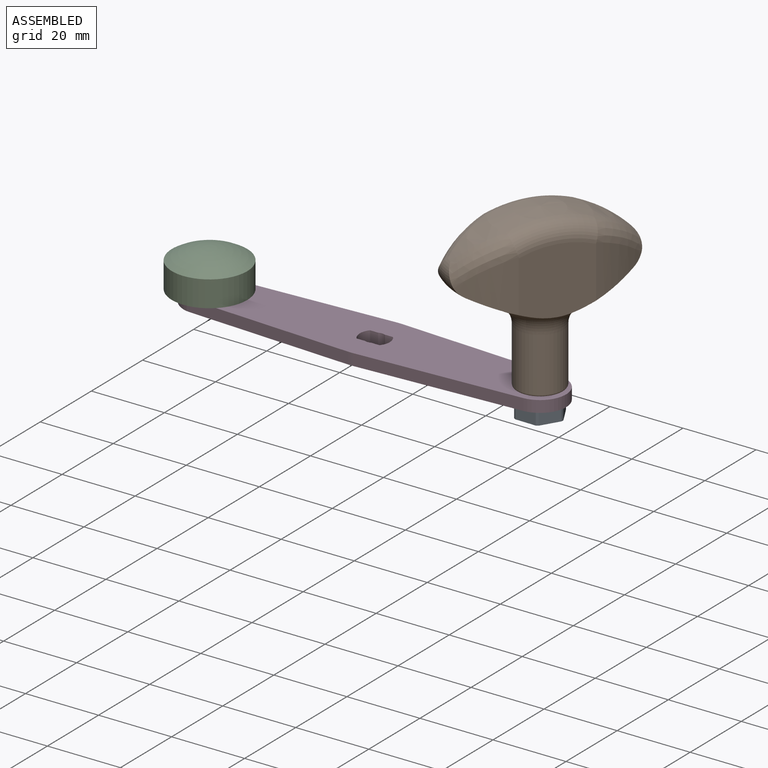
[diagram: assembled view]
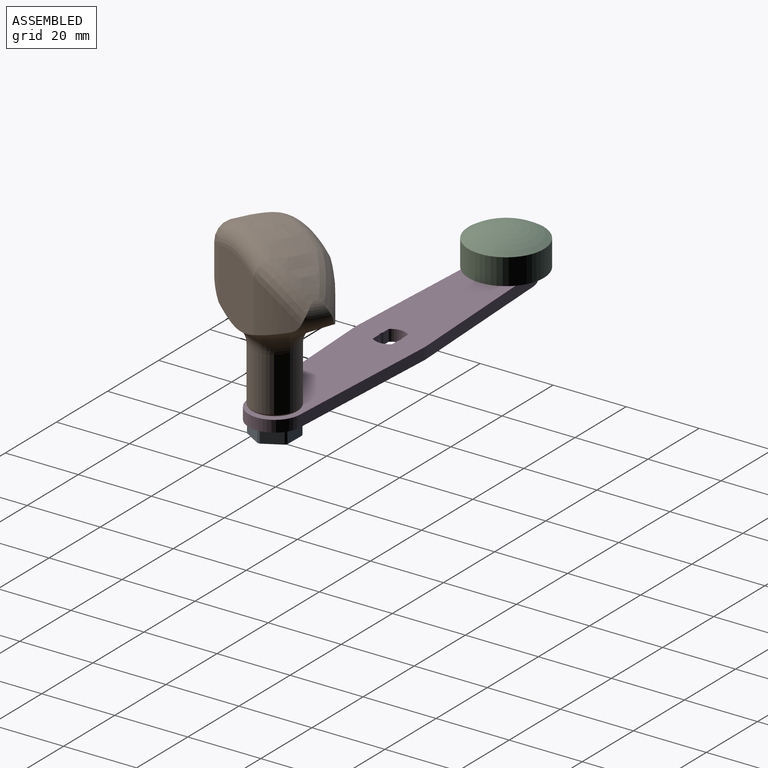
[diagram: assembled view, second angle]
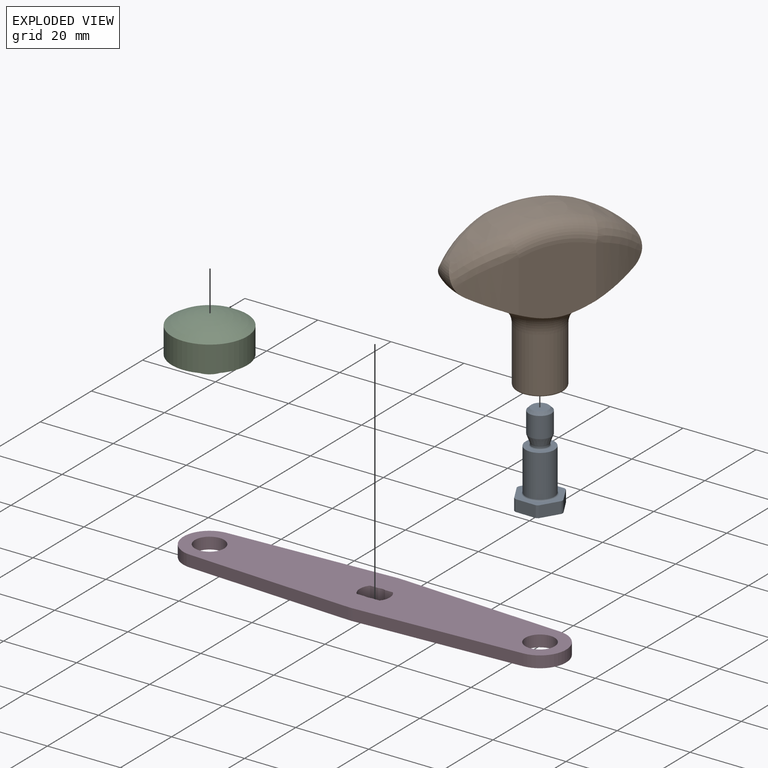
[diagram: exploded view]
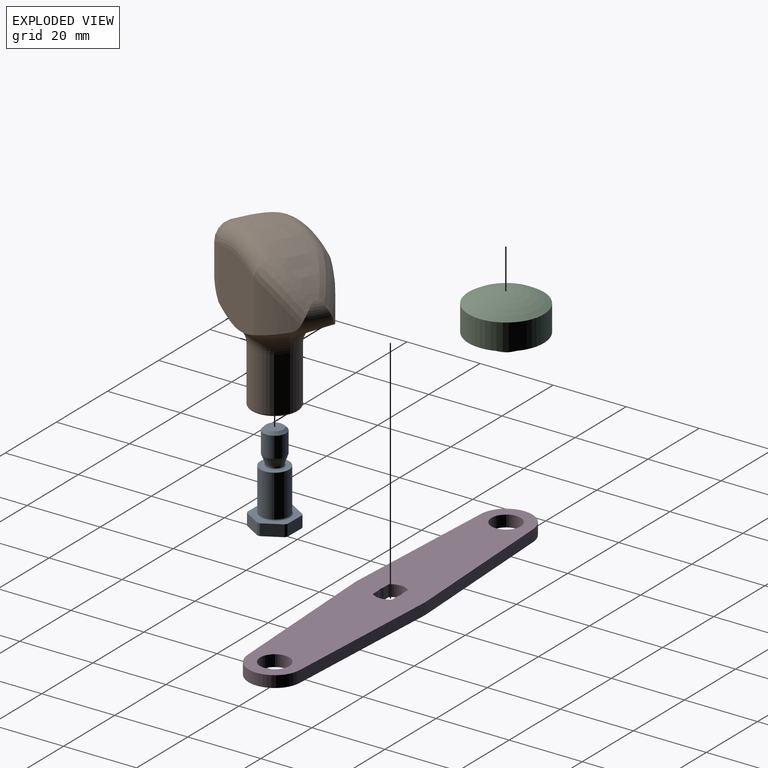
[diagram: exploded view, second angle]
ASSEMBLY  parts=4 mates=3
PART A: 23 faces, bbox 24.6x11.1x12.4 mm
  f0: plane 12.45x11.1mm, normal (1,0,0), area 106.3mm2, adj f1,f2,f3,f4,f5,f12,f14,f15
  f1: cylinder r=6.22mm len=3.18mm, axis (-1,0,0), area 2.1mm2, adj f0,f13,f14,f19
  f2: cylinder r=6.22mm len=3.18mm, axis (-1,0,0), area 2.1mm2, adj f0,f13,f18,f19
  f3: cylinder r=6.22mm len=3.18mm, axis (-1,0,0), area 2.1mm2, adj f0,f13,f17,f18
  f4: cylinder r=6.22mm len=3.18mm, axis (-1,0,0), area 2.1mm2, adj f0,f13,f16,f17
  f5: cylinder r=6.22mm len=3.18mm, axis (-1,0,0), area 2.1mm2, adj f0,f13,f15,f16
  f6: cylinder r=3.94mm len=11.53mm, axis (-1,0,0), area 285.1mm2, adj f7,f21
  f7: plane 7.87x7.87mm, normal (-1,0,0), area 26.3mm2, adj f6,f22
  f8: cylinder r=2.29mm len=4.57mm, axis (-1,0,0), area 5.5mm2, adj f9,f22
  f9: cone r=3.11mm half-angle=20deg, axis (-1,0,0), area 40.9mm2, adj f8,f10
  f10: cylinder r=3.11mm len=6.22mm, axis (-1,0,0), area 112.1mm2, adj f9,f20
  f11: plane 4.7x4.7mm, normal (-1,0,0), area 17.3mm2, adj f20
  f12: cylinder r=6.22mm len=3.18mm, axis (-1,0,0), area 2.1mm2, adj f0,f13,f14,f15
  f13: plane 12.45x11.1mm, normal (-1,0,0), area 47.8mm2, adj f1,f2,f3,f4,f5,f12,f14,f15
  f14: plane 4.88x3.18mm, normal (0,-0.5,0.87), area 17.9mm2, adj f0,f1,f12,f13
  f15: plane 4.88x3.18mm, normal (0,0.5,0.87), area 17.9mm2, adj f0,f5,f12,f13
  f16: plane 5.63x3.18mm, normal (0,1,0), area 17.9mm2, adj f0,f4,f5,f13
  f17: plane 4.88x3.18mm, normal (0,0.5,-0.87), area 17.9mm2, adj f0,f3,f4,f13
  f18: plane 4.88x3.18mm, normal (0,-0.5,-0.87), area 17.9mm2, adj f0,f2,f3,f13
  f19: plane 5.63x3.18mm, normal (0,-1,0), area 17.9mm2, adj f0,f1,f2,f13
  f20: cone r=2.35mm half-angle=45deg, axis (1,0,0), area 18.5mm2, adj f10,f11
  f21: torus R=4.32mm, axis (-1,0,0), area 15.3mm2, adj f6,f13
  f22: torus R=2.67mm, axis (-1,0,0), area 9.1mm2, adj f7,f8
PART B: 25 faces, bbox 49.2x47.3x54.1 mm
  f0: cone r=6.35mm half-angle=60deg, axis (-1,0,0), area 281.8mm2, adj f2,f8,f9,f10,f11,f13
  f1: torus R=19.05mm, axis (1,0,0), area 57.8mm2, adj f3,f6,f7,f12,f22,f23
  f2: torus R=19.05mm, axis (1,0,0), area 57.8mm2, adj f0,f3,f9,f10,f21,f24
  f3: sphere r=31.91mm, area 416.4mm2, adj f1,f2,f14,f15,f21,f22,f23,f24
  f4: plane 11.68x11.68mm, normal (1,0,0), area 57.7mm2, adj f16,f20
  f5: cylinder r=6.35mm len=14.88mm, axis (1,0,0), area 593.5mm2, adj f13,f20
  f6: cone r=6.35mm half-angle=60deg, axis (-1,0,0), area 281.8mm2, adj f1,f7,f8,f11,f12,f13
  f7: cylinder r=38.1mm len=14.39mm, axis (1,0,0), area 124.5mm2, adj f1,f6,f8,f15,f22
  f8: plane 21.62x20.68mm, normal (0,-1,0), area 318.5mm2, adj f0,f6,f7,f9,f15
  f9: cylinder r=38.1mm len=14.39mm, axis (1,0,0), area 124.5mm2, adj f0,f2,f8,f15,f21
  f10: cylinder r=38.1mm len=14.39mm, axis (1,0,0), area 124.5mm2, adj f0,f2,f11,f14,f24
  f11: plane 21.62x20.68mm, normal (0,1,0), area 318.5mm2, adj f0,f6,f10,f12,f14
  f12: cylinder r=38.1mm len=14.39mm, axis (1,0,0), area 124.5mm2, adj f1,f6,f11,f14,f23
  f13: torus R=12.7mm, axis (1,0,0), area 311.2mm2, adj f0,f5,f6
  f14: torus R=26.46mm, axis (0,-1,0), area 150.1mm2, adj f3,f10,f11,f12,f23,f24
  f15: torus R=26.46mm, axis (0,-1,0), area 150.1mm2, adj f3,f7,f8,f9,f21,f22
  f16: cylinder r=3.97mm len=7.94mm, axis (1,0,0), area 197.9mm2, adj f4,f17
  f17: plane 7.94x7.94mm, normal (1,0,0), area 29mm2, adj f16,f19
  f18: cone r=0mm half-angle=59deg, axis (1,0,0), area 23.9mm2, adj f19
  f19: cylinder r=2.55mm len=13.34mm, axis (1,0,0), area 213.9mm2, adj f17,f18
  f20: torus R=5.84mm, axis (1,0,0), area 30.9mm2, adj f4,f5
  f21: bspline ~16.84x13.08mm, area 101.7mm2, adj f2,f3,f9,f15
  f22: bspline ~16.84x13.08mm, area 101.7mm2, adj f1,f3,f7,f15
  f23: bspline ~16.84x13.08mm, area 101.7mm2, adj f1,f3,f12,f14
  f24: bspline ~16.84x13.08mm, area 101.7mm2, adj f2,f3,f10,f14
PART C: 5 faces, bbox 13.3x20.6x20.6 mm
  f0: sphere r=19.05mm, area 363.5mm2, adj f1
  f1: cylinder r=10.32mm len=20.64mm, axis (-1,0,0), area 462.8mm2, adj f0,f2
  f2: plane 20.64x20.64mm, normal (-1,0,0), area 285mm2, adj f1,f3
  f3: cylinder r=3.97mm len=7.94mm, axis (-1,0,0), area 79.2mm2, adj f2,f4
  f4: plane 7.94x7.94mm, normal (-1,0,0), area 49.5mm2, adj f3
PART D: 20 faces, bbox 104.8x19x3.2 mm
  f0: plane 44.96x3.18mm, normal (0.05,-1,0), area 142.9mm2, adj f1,f17,f18,f19
  f1: cylinder r=7.14mm len=14.26mm, axis (0,0,1), area 68.8mm2, adj f0,f2,f18,f19
  f2: plane 44.96x3.18mm, normal (0.05,1,0), area 142.9mm2, adj f1,f3,f18,f19
  f3: cylinder r=12.7mm len=3.18mm, axis (0,0,1), area 4.2mm2, adj f2,f4,f18,f19
  f4: plane 44.96x3.18mm, normal (-0.05,1,0), area 142.9mm2, adj f3,f5,f18,f19
  f5: cylinder r=7.14mm len=14.26mm, axis (0,0,1), area 68.8mm2, adj f4,f6,f18,f19
  f6: plane 44.96x3.18mm, normal (-0.05,-1,0), area 142.9mm2, adj f5,f17,f18,f19
  f7: cylinder r=4.1mm len=5.28mm, axis (0,0,1), area 18.2mm2, adj f8,f14,f18,f19
  f8: plane 3.18x2.19mm, normal (0,1,0), area 7mm2, adj f7,f9,f18,f19
  f9: cylinder r=2.81mm len=3.18mm, axis (0,0,1), area 6.1mm2, adj f8,f10,f18,f19
  f10: plane 3.18x2.19mm, normal (0,1,0), area 7mm2, adj f9,f11,f18,f19
  f11: cylinder r=4.1mm len=5.28mm, axis (0,0,1), area 18.2mm2, adj f10,f12,f18,f19
  f12: plane 3.18x2.19mm, normal (0,-1,0), area 7mm2, adj f11,f13,f18,f19
  f13: cylinder r=2.81mm len=3.18mm, axis (0,0,1), area 6.1mm2, adj f12,f14,f18,f19
  f14: plane 3.18x2.19mm, normal (0,-1,0), area 7mm2, adj f7,f13,f18,f19
  f15: cylinder r=4mm len=8mm, axis (0,0,1), area 79.8mm2, adj f18,f19
  f16: cylinder r=4mm len=8mm, axis (0,0,1), area 79.8mm2, adj f18,f19
  f17: cylinder r=12.7mm len=3.18mm, axis (0,0,1), area 4.2mm2, adj f0,f6,f18,f19
  f18: plane 104.78x19.02mm, normal (0,0,-1), area 1527.8mm2, adj f0,f1,f2,f3,f4,f5,f6,f7
  f19: plane 104.78x19.02mm, normal (0,0,1), area 1527.8mm2, adj f0,f1,f2,f3,f4,f5,f6,f7
PLACE A rot(axis=(0.66,0.37,-0.66),139.2deg) t=(45.25,-0.51,-6.76)mm
PLACE B rot(axis=(0.66,0.37,-0.66),139.2deg) t=(45.25,-0.51,0.38)mm
PLACE C rot(axis=(0.71,0,0.71),180deg) t=(-45.25,-0.51,10.17)mm
PLACE D t=(-52.39,9.02,0)mm fixed
MATE fastened A.f1 <-> B.f16  axis (0,0,1) through (45.25,-0.51,8.32)mm
MATE fastened C.f1 <-> D.f5  axis (0,0,-1) through (-45.25,-0.51,0)mm
MATE revolute B.f16 <-> D.f1  axis (0,0,-1) through (45.25,-0.51,0.38)mm
